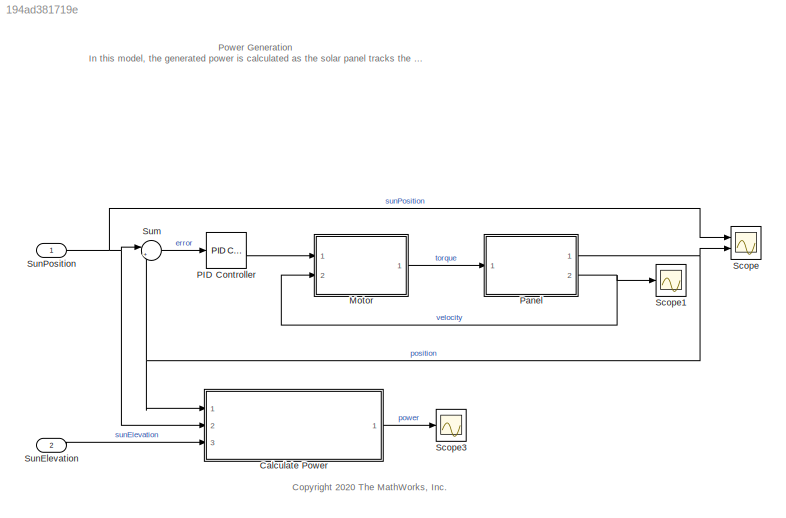
MODEL slx_194ad381719e
KIND model
CONFIG AbsTol = auto
CONFIG EnableMultiTasking = off
CONFIG FixedStep = auto
CONFIG MaxStep = auto
CONFIG MinStep = auto
CONFIG PreLoadFcn = % Set physical parameters\npanelMotorParams;\n\n% Load sun position data for tracking\nload sunPositionData;
CONFIG RelTol = 1e-3
CONFIG SampleTimeConstraint = Unconstrained
CONFIG Solver = VariableStepAuto
CONFIG SolverName = VariableStepAuto
CONFIG StartTime = 0.0
CONFIG StopTime = 15*3600
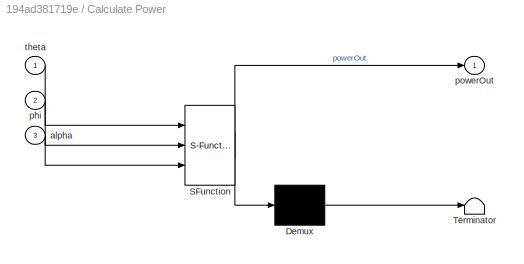
BLOCK [SubSystem] Calculate Power
  ErrorFcn = Stateflow.Translate.translate
  PermitHierarchicalResolution = ExplicitOnly
  Ports = [3, 1]
  RequestExecContextInheritance = off
  SFBlockType = MATLAB Function
  TreatAsAtomicUnit = on
BLOCK [Demux] Calculate Power/ Demux 
  Outputs = 1
  Ports = [1, 1]
BLOCK [S-Function] Calculate Power/ SFunction 
  EnableBusSupport = on
  FunctionName = sf_sfun
  Parameters = A,beta
  PortCounts = [3 2]
  Ports = [3, 2]
  SFcnIsStateOwnerBlock = off
  SFunctionDeploymentMode = off
  Tag = Stateflow S-Function 2
BLOCK [Terminator] Calculate Power/ Terminator 
BLOCK [Inport] Calculate Power/alpha
  IconDisplay = Port number
  Port = 3
BLOCK [Inport] Calculate Power/phi
  IconDisplay = Port number
  Port = 2
BLOCK [Outport] Calculate Power/powerOut
  IconDisplay = Port number
BLOCK [Inport] Calculate Power/theta
  IconDisplay = Port number
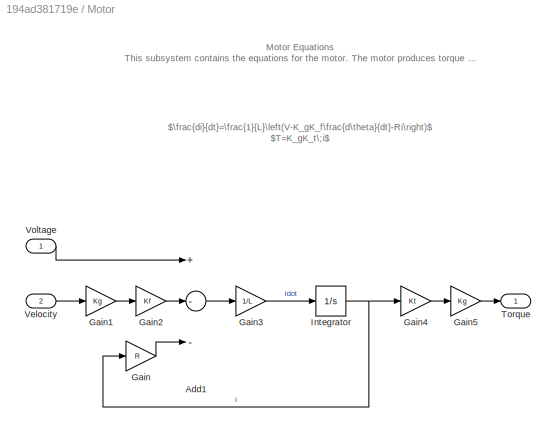
BLOCK [SubSystem] Motor
  Ports = [2, 1]
  RequestExecContextInheritance = off
BLOCK [Sum] Motor/Add1
  InputSameDT = off
  Inputs = +--
  OutDataTypeStr = Inherit: Inherit via internal rule
  Ports = [3, 1]
  SaturateOnIntegerOverflow = off
BLOCK [Gain] Motor/Gain
  Gain = R
  OutDataTypeStr = Inherit: Inherit via internal rule
  ParamDataTypeStr = Inherit: Inherit via internal rule
  SaturateOnIntegerOverflow = off
BLOCK [Gain] Motor/Gain1
  Gain = Kg
  OutDataTypeStr = Inherit: Inherit via internal rule
  ParamDataTypeStr = Inherit: Inherit via internal rule
  SaturateOnIntegerOverflow = off
BLOCK [Gain] Motor/Gain2
  Gain = Kf
  OutDataTypeStr = Inherit: Inherit via internal rule
  ParamDataTypeStr = Inherit: Inherit via internal rule
  SaturateOnIntegerOverflow = off
BLOCK [Gain] Motor/Gain3
  Gain = 1/L
  OutDataTypeStr = Inherit: Inherit via internal rule
  ParamDataTypeStr = Inherit: Inherit via internal rule
  SaturateOnIntegerOverflow = off
BLOCK [Gain] Motor/Gain4
  Gain = Kt
  OutDataTypeStr = Inherit: Inherit via internal rule
  ParamDataTypeStr = Inherit: Inherit via internal rule
  SaturateOnIntegerOverflow = off
BLOCK [Gain] Motor/Gain5
  Gain = Kg
  OutDataTypeStr = Inherit: Inherit via internal rule
  ParamDataTypeStr = Inherit: Inherit via internal rule
  SaturateOnIntegerOverflow = off
BLOCK [Integrator] Motor/Integrator
  Ports = [1, 1]
BLOCK [Outport] Motor/Torque
  IconDisplay = Port number
BLOCK [Inport] Motor/Velocity
  IconDisplay = Port number
  Port = 2
BLOCK [Inport] Motor/Voltage
  IconDisplay = Port number
BLOCK [Reference] PID Controller  REF=simulink/Continuous/PID Controller
  Ports = [1, 1]
  SourceBlock = simulink/Continuous/PID Controller
  SourceProductBaseCode = SL
  SourceProductName = Simulink
  SourceType = PID 1dof
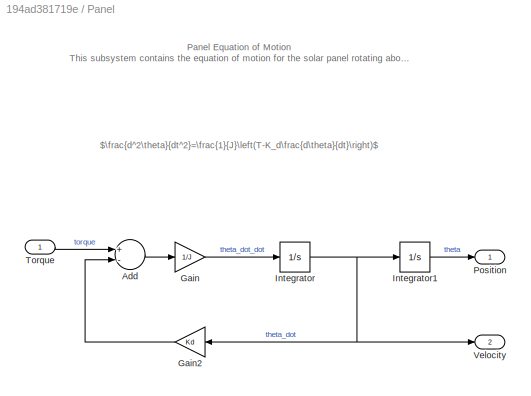
BLOCK [SubSystem] Panel
  Ports = [1, 2]
  RequestExecContextInheritance = off
BLOCK [Sum] Panel/Add
  InputSameDT = off
  Inputs = +-
  OutDataTypeStr = Inherit: Inherit via internal rule
  Ports = [2, 1]
  SaturateOnIntegerOverflow = off
BLOCK [Gain] Panel/Gain
  Gain = 1/J
  OutDataTypeStr = Inherit: Inherit via internal rule
  ParamDataTypeStr = Inherit: Inherit via internal rule
  SaturateOnIntegerOverflow = off
BLOCK [Gain] Panel/Gain2
  Gain = Kd
  OutDataTypeStr = Inherit: Inherit via internal rule
  ParamDataTypeStr = Inherit: Inherit via internal rule
  SaturateOnIntegerOverflow = off
BLOCK [Integrator] Panel/Integrator
  Ports = [1, 1]
BLOCK [Integrator] Panel/Integrator1
  Ports = [1, 1]
BLOCK [Outport] Panel/Position
  IconDisplay = Port number
BLOCK [Inport] Panel/Torque
  IconDisplay = Port number
BLOCK [Outport] Panel/Velocity
  IconDisplay = Port number
  Port = 2
BLOCK [Scope] Scope
  Floating = off
  NumInputPorts = 2
  Ports = [2]
  ScopeSpecificationString = Simulink.scopes.TimeScopeBlockCfg('CurrentConfiguration', extmgr.ConfigurationSet(extmgr.Configuration('Core','General UI',true),extmgr.Configuration('Core','Source UI',true),extmgr.Configuration('Sources','WiredSimulink',true,'DataLoggingVariableName','ScopeData1'),extmgr.Configuration('Visuals','Time Domain',true,'SerializedDisplays',{struct('MinYLimReal','-0.65984','MaxYLimReal','5.93858','YLab...<+1510ch>
BLOCK [Scope] Scope1
  Floating = off
  NumInputPorts = 1
  Ports = [1]
  ScopeSpecificationString = Simulink.scopes.TimeScopeBlockCfg('CurrentConfiguration', extmgr.ConfigurationSet(extmgr.Configuration('Core','General UI',true),extmgr.Configuration('Core','Source UI',true),extmgr.Configuration('Sources','WiredSimulink',true,'DataLoggingVariableName','ScopeData2'),extmgr.Configuration('Visuals','Time Domain',true,'SerializedDisplays',{struct('MinYLimReal','-0.32515','MaxYLimReal','1.94208','YLab...<+1432ch>
BLOCK [Scope] Scope3
  Floating = off
  NumInputPorts = 1
  Ports = [1]
  ScopeSpecificationString = Simulink.scopes.TimeScopeBlockCfg('CurrentConfiguration', extmgr.ConfigurationSet(extmgr.Configuration('Core','General UI',true),extmgr.Configuration('Core','Source UI',true),extmgr.Configuration('Sources','WiredSimulink',true,'DataLoggingVariableName','ScopeData3'),extmgr.Configuration('Visuals','Time Domain',true,'SerializedDisplays',{struct('MinYLimReal','-31.43696','MaxYLimReal','282.93262','Y...<+1398ch>
BLOCK [Sum] Sum
  IconShape = round
  InputSameDT = off
  Inputs = |+-
  OutDataTypeStr = Inherit: Inherit via internal rule
  Ports = [2, 1]
  SaturateOnIntegerOverflow = off
BLOCK [Inport] SunElevation
  IconDisplay = Port number
  Port = 2
BLOCK [Inport] SunPosition
  IconDisplay = Port number
ANNOTATION (root): Power Generation In this model, the generated power is calculated as the solar panel tracks the sun's position across the sky.
ANNOTATION (root): <copyright redacted>
ANNOTATION Motor: Motor Equations This subsystem contains the equations for the motor. The motor produces torque to rotate the solar panel.
ANNOTATION Motor: $\frac{di}{dt}=\frac{1}{L}\left(V-K_gK_f\frac{d\theta}{dt}-Ri\right)$ $T=K_gK_t\;i$
ANNOTATION Panel: Panel Equation of Motion This subsystem contains the equation of motion for the solar panel rotating about its central post. The panel's rotation is driven by torque from the motor.
ANNOTATION Panel: $\frac{d^2\theta}{dt^2}=\frac{1}{J}\left(T-K_d\frac{d\theta}{dt}\right)$
LINE Calculate Power:1 -> Scope3:1
LINE Motor/Add1:1 -> Motor/Gain3:1
LINE Motor/Gain1:1 -> Motor/Gain2:1
LINE Motor/Gain2:1 -> Motor/Add1:2
LINE Motor/Gain3:1 -> Motor/Integrator:1
LINE Motor/Gain4:1 -> Motor/Gain5:1
LINE Motor/Gain5:1 -> Motor/Torque:1
LINE Motor/Gain:1 -> Motor/Add1:3
NET Motor/Integrator:1 -> Motor/Gain4:1, Motor/Gain:1
LINE Motor/Velocity:1 -> Motor/Gain1:1
LINE Motor/Voltage:1 -> Motor/Add1:1
LINE Motor:1 -> Panel:1
LINE PID Controller:1 -> Motor:1
LINE Panel/Add:1 -> Panel/Gain:1
LINE Panel/Gain2:1 -> Panel/Add:2
LINE Panel/Gain:1 -> Panel/Integrator:1
LINE Panel/Integrator1:1 -> Panel/Position:1
NET Panel/Integrator:1 -> Panel/Gain2:1, Panel/Integrator1:1, Panel/Velocity:1
LINE Panel/Torque:1 -> Panel/Add:1
NET Panel:1 -> Calculate Power:1, Scope:2, Sum:2
NET Panel:2 -> Motor:2, Scope1:1
LINE Sum:1 -> PID Controller:1
LINE SunElevation:1 -> Calculate Power:3
NET SunPosition:1 -> Calculate Power:2, Scope:1, Sum:1
note: NET lines group one-source signal fan-out (src -> all destinations, sorted); 1:1 wires keep LINE
CHART Calculate Power states=1 transitions=1
  STATE_LABEL 'eML_blk_kernel()'
  STATE_LABEL 'SCRIPT:\nfunction powerOut = CalculatePower(theta, phi, alpha, A, beta)\n\n% Calculate dot product of the incident sun and panel normal vectors\ndot_prod = sin(beta)*sin(pi/2-alpha)*cos(theta-phi) ...\n    + cos(beta)*cos(pi/2-alpha);\n\n% Calculate the direct power\npowerOut = 1.353*0.7.^(sin(alpha).^-0.678)*dot_prod*A*0.195*1000; % W\n\n% Replace negative power values with zero (sun is behind the panel)\np...<+26ch>'
